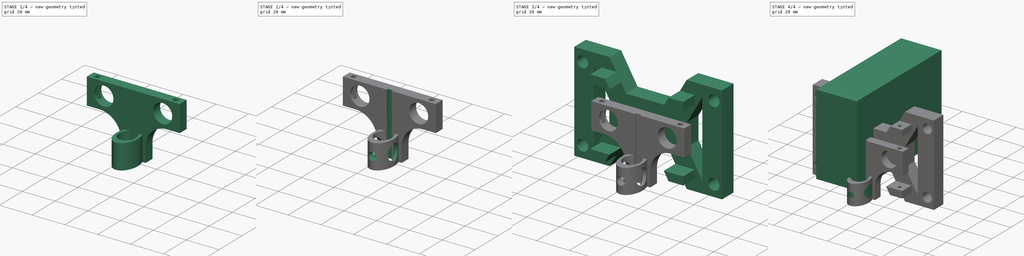
[diagram: build sequence overview — one tinted view per stage of 4, left to right]
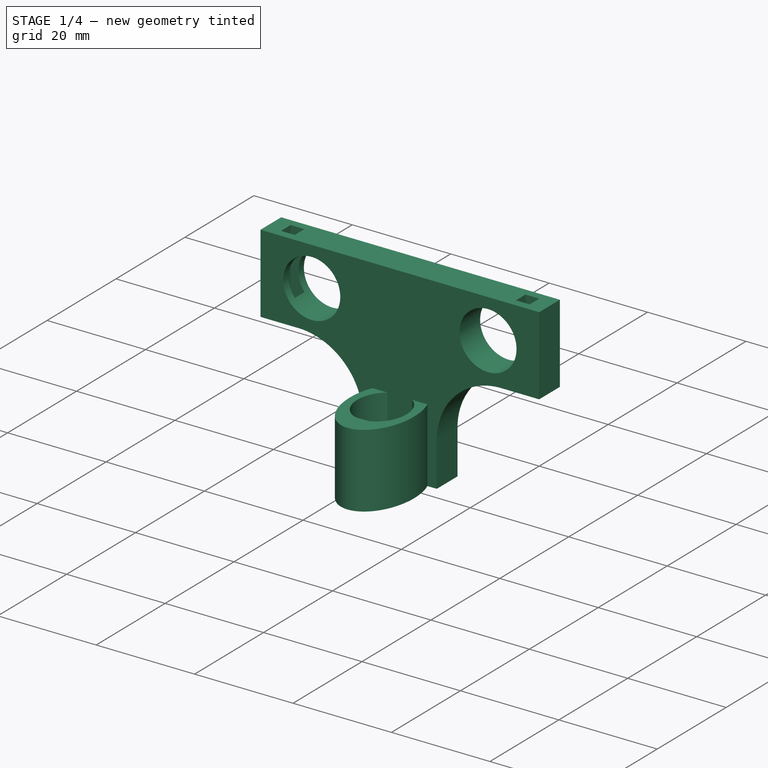
[diagram: stage 1 of 4 — iso view after this stage's code; geometry added in this stage tinted green]
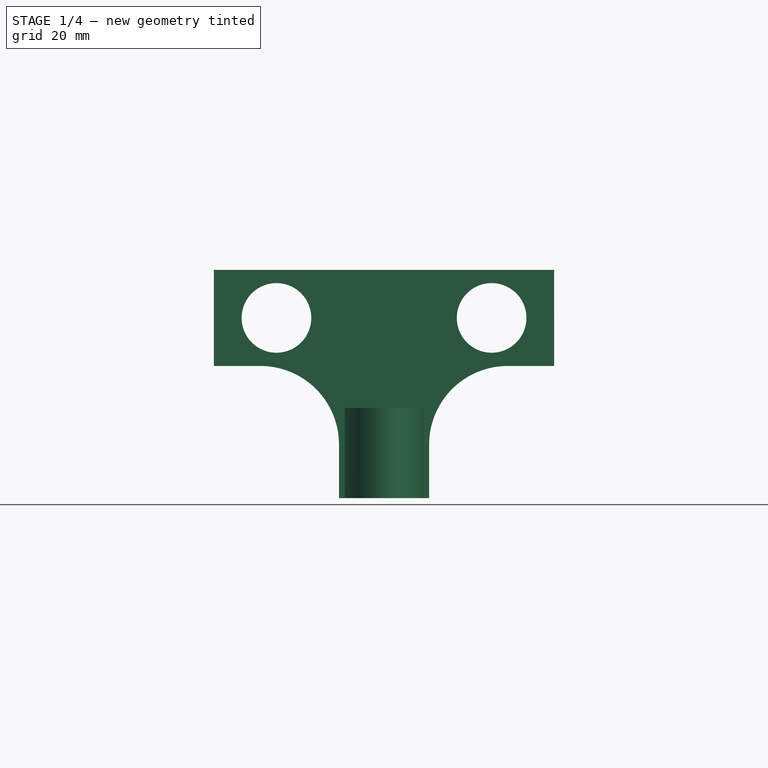
[diagram: stage 1 of 4 — front view after this stage's code; geometry added in this stage tinted green]
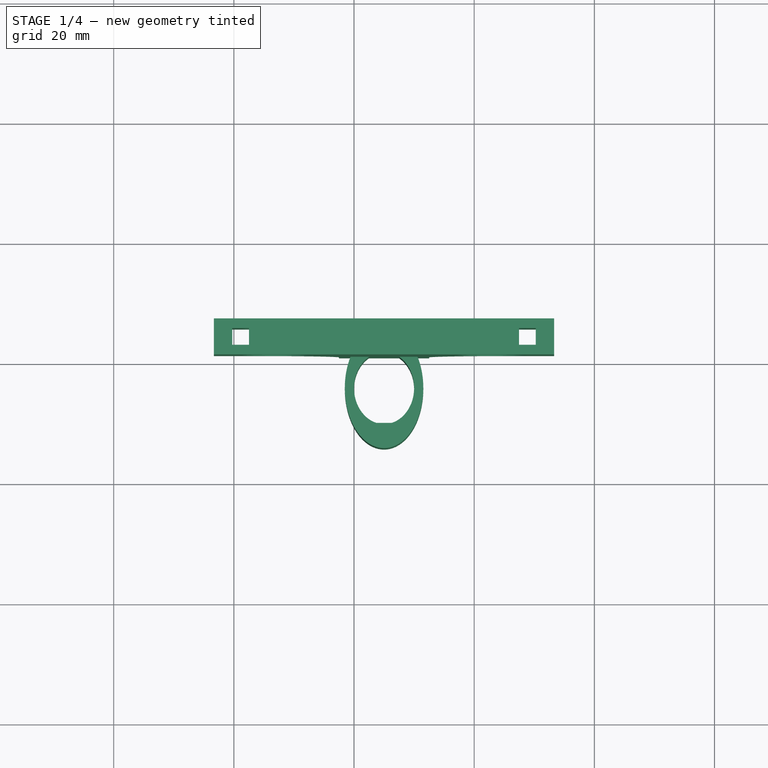
[diagram: stage 1 of 4 — top view after this stage's code; geometry added in this stage tinted green]
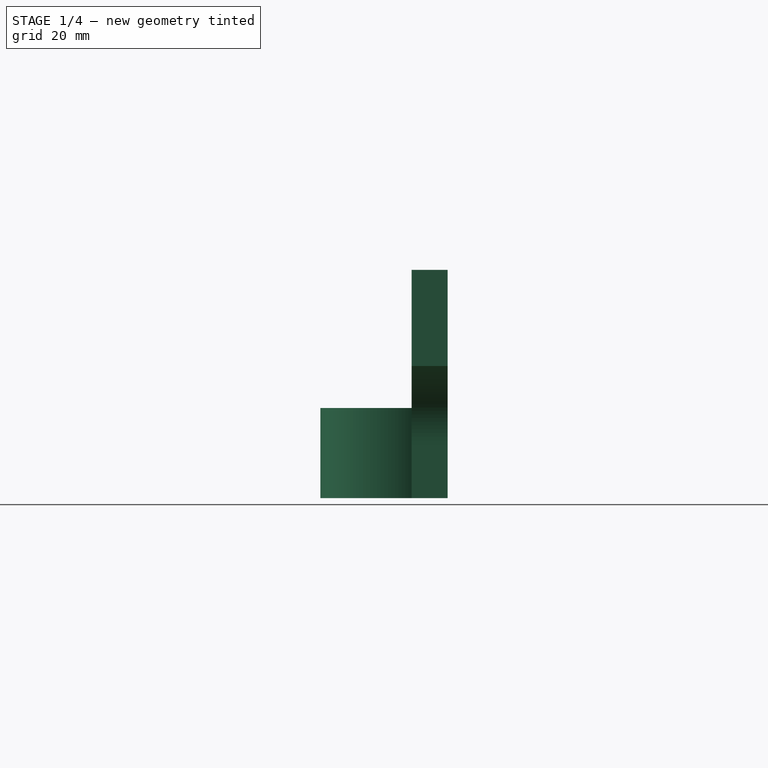
[diagram: stage 1 of 4 — right view after this stage's code; geometry added in this stage tinted green]
FCSTD DOCUMENT  (FreeCAD 0.18R4 (GitTag))
Label: tool-pencil
License: All rights reserved
LicenseURL: http://en.wikipedia.org/wiki/All_rights_reserved
objects: Sketcher::SketchObject×11, PartDesign::Pocket×6, PartDesign::Pad×5, PartDesign::Body×3, PartDesign::Plane×3
note: 39 computed .brp shape members not serialized (recipe doc carries the construction recipe); baked Part::Feature solids carry a one-line shape summary decoded from their .brp

FEATURE [PartDesign::Body] Body001  label="pencil-support"
  Group = -> [Sketch003,Pad001,Sketch004,Pad002,Sketch005,Pocket]
  Origin = -> Origin001
  Tip = -> Pocket
FEATURE [Sketcher::SketchObject] CopySketch004
  Placement = pos=(0,-13,7e-15) rot=(1,0,0;1.5708rad)
  sketch-geometry (43):
    g0: LineSegment [constr] StartX=16.6787 StartY=53 StartZ=0 EndX=25.5807 EndY=53 EndZ=0
    g1: LineSegment [constr] StartX=25.5807 StartY=53 StartZ=0 EndX=28.4674 EndY=48 EndZ=0
    g2: LineSegment [constr] StartX=28.4674 StartY=48 StartZ=0 EndX=16.6787 EndY=48 EndZ=0
    g3: LineSegment [constr] StartX=16.6787 StartY=48 StartZ=0 EndX=16.6787 EndY=53 EndZ=0
    g4: LineSegment [constr] StartX=64.4193 StartY=53 StartZ=0 EndX=73.3018 EndY=53 EndZ=0
    g5: LineSegment [constr] StartX=73.3018 StartY=53 StartZ=0 EndX=73.3018 EndY=48 EndZ=0
    g6: LineSegment [constr] StartX=73.3018 StartY=48 StartZ=0 EndX=61.5326 EndY=48 EndZ=0
    g7: LineSegment [constr] StartX=61.5326 StartY=48 StartZ=0 EndX=64.4193 EndY=53 EndZ=0
    g8: LineSegment [constr] StartX=4.14726 StartY=53 StartZ=0 EndX=81.8093 EndY=53 EndZ=0
    g9: LineSegment [constr] StartX=16.6787 StartY=63.7023 StartZ=0 EndX=16.6787 EndY=-6.93303 EndZ=0
    g10: GeomPoint X=16.6787 Y=44.9021 Z=0
    g11: GeomPoint X=73.3018 Y=44.9021 Z=0
    g12: LineSegment [constr] StartX=73.3018 StartY=64.5507 StartZ=0 EndX=73.3018 EndY=-6.40628 EndZ=0
    g13: LineSegment [constr] StartX=-3.57107 StartY=7 StartZ=0 EndX=95.8724 EndY=7 EndZ=0
    g14: LineSegment [constr] StartX=16.6787 StartY=12 StartZ=0 EndX=16.6787 EndY=7 EndZ=0
    g15: LineSegment [constr] StartX=16.6787 StartY=7 StartZ=0 EndX=25.5807 EndY=7 EndZ=0
    g16: LineSegment [constr] StartX=25.5807 StartY=7 StartZ=0 EndX=28.4674 EndY=12 EndZ=0
    g17: LineSegment [constr] StartX=28.4674 StartY=12 StartZ=0 EndX=16.6787 EndY=12 EndZ=0
    g18: LineSegment [constr] StartX=73.3018 StartY=12 StartZ=0 EndX=61.5326 EndY=12 EndZ=0
    g19: LineSegment [constr] StartX=61.5326 StartY=12 StartZ=0 EndX=64.4193 EndY=7 EndZ=0
    g20: LineSegment [constr] StartX=64.4193 StartY=7 StartZ=0 EndX=73.3018 EndY=7 EndZ=0
    g21: LineSegment [constr] StartX=73.3018 StartY=7 StartZ=0 EndX=73.3018 EndY=12 EndZ=0
    g22: LineSegment [constr] StartX=-5.80281 StartY=38 StartZ=0 EndX=96.7557 EndY=38 EndZ=0
    g23: LineSegment [constr] StartX=-6.86067 StartY=22 StartZ=0 EndX=103.98 EndY=22 EndZ=0
    g24: LineSegment [constr] StartX=37.5 StartY=38 StartZ=0 EndX=37.5 EndY=0 EndZ=0
    g25: LineSegment [constr] StartX=52.5 StartY=38 StartZ=0 EndX=52.5 EndY=0 EndZ=0
    g26: LineSegment [constr] StartX=90 StartY=65.0445 StartZ=0 EndX=90 EndY=0 EndZ=0
    g27: GeomPoint X=45 Y=38 Z=0
    g28: LineSegment [constr] StartX=45 StartY=72.8091 StartZ=0 EndX=45 EndY=-7.09254 EndZ=0
    g29: LineSegment StartX=16.6787 StartY=38 StartZ=0 EndX=73.3018 EndY=38 EndZ=0
    g30: LineSegment StartX=73.3018 StartY=38 StartZ=0 EndX=73.3018 EndY=22 EndZ=0
    g31: LineSegment StartX=73.3018 StartY=22 StartZ=0 EndX=65.5675 EndY=22 EndZ=0
    g32: LineSegment StartX=52.5 StartY=8.93253 StartZ=0 EndX=52.5 EndY=0 EndZ=0
    g33: LineSegment StartX=52.5 StartY=0 StartZ=0 EndX=37.5 EndY=0 EndZ=0
    g34: LineSegment StartX=37.5 StartY=0 StartZ=0 EndX=37.5 EndY=8.93253 EndZ=0
    g35: LineSegment StartX=24.4325 StartY=22 StartZ=0 EndX=16.6787 EndY=22 EndZ=0
    g36: LineSegment StartX=16.6787 StartY=22 StartZ=0 EndX=16.6787 EndY=38 EndZ=0
    g37: ArcOfCircle CenterX=24.4325 CenterY=8.93253 CenterZ=0 NormalX=0 NormalY=0 NormalZ=1 AngleXU=0 Radius=13.0675 StartAngle=0 EndAngle=1.5708
    g38: ArcOfCircle CenterX=65.5675 CenterY=8.93253 CenterZ=0 NormalX=0 NormalY=0 NormalZ=1 AngleXU=0 Radius=13.0675 StartAngle=1.5708 EndAngle=3.14159
    g39: Circle CenterX=27.0893 CenterY=30 CenterZ=0 NormalX=0 NormalY=0 NormalZ=1 AngleXU=0 Radius=5.79446
    g40: Circle CenterX=62.9009 CenterY=30 CenterZ=0 NormalX=0 NormalY=0 NormalZ=1 AngleXU=0 Radius=5.79446
    g41: GeomPoint X=37.5 Y=22 Z=0
    g42: GeomPoint X=52.5 Y=22 Z=0
  constraints (83):
    c: Coincident(g0,g1)
    c: Coincident(g1,g2)
    c: Coincident(g2,g3)
    c: Coincident(g4,g5)
    c: Coincident(g5,g6)
    c: Coincident(g6,g7)
    c: Coincident(g3,g0)
    c: Coincident(g7,g4)
    c: Horizontal(g0)
    c: Horizontal(g2)
    c: Horizontal(g6)
    c: Vertical(g9)
    c: PointOnObject(g10,g9)
    c: Vertical(g12)
    c: PointOnObject(g11,g12)
    c: Tangent(g0,g8)
    c: Tangent(g3,g9)
    c: Tangent(g4,g8)
    c: Tangent(g5,g12)
    c: DistanceY(g2,g0) = 5
    c: DistanceY(g5,g4) = 5
    c: Horizontal(g13)
    c: DistanceY(g-1,g13) = 7
    c: Coincident(g14,g15)
    c: Coincident(g15,g16)
    c: Coincident(g16,g17)
    c: Coincident(g18,g19)
    c: Coincident(g19,g20)
    c: Coincident(g20,g21)
    c: Coincident(g18,g21)
    c: Coincident(g17,g14)
    c: Tangent(g14,g9)
    c: Tangent(g15,g13)
    c: Horizontal(g17)
    c: Horizontal(g18)
    c: Tangent(g21,g12)
    c: Tangent(g20,g13)
    c: DistanceY(g20,g18) = 5
    c: DistanceY(g14,g14) = 5
    c: DistanceY(g22,g2) = 10
    c: Horizontal(g22)
    c: DistanceY(g14,g23) = 10
    c: Horizontal(g23)
    c: Vertical(g24)
    c: Vertical(g25)
    c: PointOnObject(g24,g22)
    c: PointOnObject(g25,g22)
    c: PointOnObject(g24,g-1)
    c: PointOnObject(g25,g-1)
    c: DistanceX(g24,g25) = 15
    c: DistanceY(g-1,g8) = 53
    c: Vertical(g26)
    c: DistanceX(g-1,g26) = 90
    c: Symmetric(g24,g25,g27)
    c: PointOnObject(g26,g-1)
    c: Symmetric(g-1,g26,g28)
    c: PointOnObject(g27,g28)
    c: Coincident(g29,g30)
    c: Coincident(g30,g31)
    c: Coincident(g32,g33)
    c: Coincident(g33,g34)
    c: Coincident(g35,g36)
    c: Coincident(g36,g29)
    c: Tangent(g36,g9)
    c: Tangent(g30,g12)
    c: Tangent(g22,g29)
    c: Tangent(g31,g23)
    c: Tangent(g35,g23)
    c: Tangent(g32,g25)
    c: Tangent(g34,g24)
    c: Tangent(g33,g-1)
    c: Tangent(g35,g37) = -1.5708
    c: Tangent(g34,g37) = -1.5708
    c: Tangent(g31,g38) = -1.5708
    c: Tangent(g32,g38) = -1.5708
    c: Equal(g38,g37)
    c: Equal(g39,g40)
    c: PointOnObject(g41,g24)
    c: PointOnObject(g41,g23)
    c: PointOnObject(g42,g23)
    c: PointOnObject(g42,g25)
    c: Symmetric(g29,g41,g39)
    c: Symmetric(g29,g42,g40)
FEATURE [PartDesign::Plane] DatumPlane
  Length = 95.9485
  MapMode = 2
  Placement = pos=(0,-13,7e-15) rot=(1,0,0;1.5708rad)
  ResizeMode = 0
  Support = -> [CopySketch004]
  Width = 60.6467
FEATURE [PartDesign::Pad] Pad003
  Length = 6
  Length2 = 100
  Placement = pos=(0,-13,7e-15) rot=(1,0,0;1.5708rad)
  Profile = -> CopySketch004
  Type = 0
FEATURE [Sketcher::SketchObject] Sketch006
  ExternalGeometry = -> [DatumPlane,Pad003]
  MapMode = 5
  Placement = pos=(0,-13,38) rot=(0,0,1;3.14159rad)
  Support = -> [Pad003]
  sketch-geometry (11):
    g0: LineSegment StartX=-19.7287 StartY=1.6 StartZ=0 EndX=-22.5287 EndY=1.6 EndZ=0
    g1: LineSegment StartX=-22.5287 StartY=1.6 StartZ=0 EndX=-22.5287 EndY=4.4 EndZ=0
    g2: LineSegment StartX=-22.5287 StartY=4.4 StartZ=0 EndX=-19.7287 EndY=4.4 EndZ=0
    g3: LineSegment StartX=-19.7287 StartY=4.4 StartZ=0 EndX=-19.7287 EndY=1.6 EndZ=0
    g4: LineSegment StartX=-67.4518 StartY=1.6 StartZ=0 EndX=-70.2518 EndY=1.6 EndZ=0
    g5: LineSegment StartX=-70.2518 StartY=1.6 StartZ=0 EndX=-70.2518 EndY=4.4 EndZ=0
    g6: LineSegment StartX=-70.2518 StartY=4.4 StartZ=0 EndX=-67.4518 EndY=4.4 EndZ=0
    g7: LineSegment StartX=-67.4518 StartY=4.4 StartZ=0 EndX=-67.4518 EndY=1.6 EndZ=0
    g8: GeomPoint X=-21.1287 Y=3 Z=0
    g9: GeomPoint X=-68.8518 Y=3 Z=0
    g10: LineSegment [constr] StartX=-16.6787 StartY=3 StartZ=0 EndX=-73.3018 EndY=3 EndZ=0
  constraints (29):
    c: Coincident(g0,g1)
    c: Coincident(g1,g2)
    c: Coincident(g2,g3)
    c: Coincident(g3,g0)
    c: Horizontal(g0)
    c: Horizontal(g2)
    c: Vertical(g1)
    c: Vertical(g3)
    c: Coincident(g4,g5)
    c: Coincident(g5,g6)
    c: Coincident(g6,g7)
    c: Coincident(g7,g4)
    c: Horizontal(g4)
    c: Horizontal(g6)
    c: Vertical(g5)
    c: Vertical(g7)
    c: Equal(g0,g1)
    c: Equal(g1,g4)
    c: Equal(g4,g5)
    c: DistanceX(g4,g4) = 2.8
    c: Symmetric(g0,g1,g8)
    c: Symmetric(g4,g5,g9)
    c: Horizontal(g10)
    c: Symmetric(g-5,g-5,g10)
    c: PointOnObject(g10,g-6)
    c: PointOnObject(g8,g10)
    c: PointOnObject(g9,g10)
    c: DistanceX(g-6,g9) = 4.45
    c: DistanceX(g8,g10) = 4.45
FEATURE [PartDesign::Pocket] Pocket002
  BaseFeature = -> Pad003
  Length = 5
  Length2 = 100
  Placement = pos=(0,-13,7e-15) rot=(1,0,0;1.5708rad)
  Profile = -> Sketch006
  Type = 1
FEATURE [Sketcher::SketchObject] Sketch007
  ExternalGeometry = -> [Pocket002]
  MapMode = 5
  Placement = pos=(0,-13,7e-15) rot=(1,0,0;3.14159rad)
  Support = -> [Pocket002]
  sketch-geometry (21):
    g0: LineSegment [constr] StartX=45 StartY=28.2877 StartZ=0 EndX=45 EndY=0 EndZ=0
    g1: LineSegment [constr] StartX=45 StartY=5.69282 StartZ=0 EndX=45 EndY=14.1915 EndZ=0
    g2: ArcOfEllipse CenterX=45 CenterY=11.1915 CenterZ=0 NormalX=0 NormalY=0 NormalZ=1 MajorRadius=6 MinorRadius=5 AngleXU=-1.5708 StartAngle=3.39493 EndAngle=9.17144
    g3: LineSegment [constr] StartX=45 StartY=5.19151 StartZ=0 EndX=45 EndY=17.1915 EndZ=0
    g4: LineSegment [constr] StartX=50 StartY=11.1915 StartZ=0 EndX=40 EndY=11.1915 EndZ=0
    g5: GeomPoint X=45 Y=7.87489 Z=0
    g6: GeomPoint X=45 Y=14.5081 Z=0
    g7: LineSegment [constr] StartX=36.9802 StartY=17 StartZ=0 EndX=53.301 EndY=17 EndZ=0
    g8: GeomPoint X=45 Y=6 Z=0
    g9: GeomPoint X=43.3236 Y=17 Z=0
    g10: GeomPoint X=46.6764 Y=17 Z=0
    g11: GeomPoint X=46.6764 Y=6 Z=0
    g12: GeomPoint X=43.3236 Y=6 Z=0
    g13: GeomPoint X=42.4933 Y=6 Z=0
    g14: GeomPoint X=42.4933 Y=6 Z=0
    g15: LineSegment [constr] StartX=37.5 StartY=6 StartZ=0 EndX=52.5 EndY=6 EndZ=0
    g16: Ellipse CenterX=45 CenterY=11.1915 CenterZ=0 NormalX=0 NormalY=0 NormalZ=1 MajorRadius=10 MinorRadius=6.53458 AngleXU=-1.5708
    g17: LineSegment [constr] StartX=45 StartY=1.19151 StartZ=0 EndX=45 EndY=21.1915 EndZ=0
    g18: GeomPoint X=45 Y=3.62189 Z=0
    g19: GeomPoint X=45 Y=18.7611 Z=0
    g20: LineSegment StartX=43.7468 StartY=17 StartZ=0 EndX=46.2532 EndY=17 EndZ=0
  constraints (33):
    c: Vertical(g0)
    c: Symmetric(g-4,g-5,g0)
    c: Vertical(g1)
    c: InternalAlignment(g3-g6 -> g2) x4
    c: Vertical(g3)
    c: DistanceY(g1,g3) = 3
    c: Horizontal(g7)
    c: PointOnObject(g8,g-3)
    c: PointOnObject(g8,g0)
    c: DistanceY(g8,g7) = 11
    c: PointOnObject(g9,g7)
    c: PointOnObject(g10,g7)
    c: PointOnObject(g11,g-3)
    c: PointOnObject(g12,g-3)
    c: PointOnObject(g14,g-3)
    c: PointOnObject(g14,g2)
    c: PointOnObject(g13,g-3)
    c: PointOnObject(g13,g2)
    c: Coincident(g15,g-4)
    c: Coincident(g15,g-5)
    c: InternalAlignment(g17,g16)
    c: InternalAlignment(g18,g16)
    c: InternalAlignment(g19,g16)
    c: Coincident(g16,g2)
    c: Vertical(g17)
    c: DistanceX(g2,g4) = 5
    c: DistanceY(g2,g3) = 6
    c: PointOnObject(g2,g0)
    c: DistanceY(g3,g17) = 4
    c: PointOnObject(g2,g7)
    c: PointOnObject(g2,g7)
    c: Coincident(g20,g2)
    c: Coincident(g20,g2)
FEATURE [PartDesign::Pad] Pad004
  BaseFeature = -> Pocket002
  Length = 15
  Length2 = 100
  Placement = pos=(0,-13,7e-15) rot=(1,0,0;1.5708rad)
  Profile = -> Sketch007
  Reversed = true
  Type = 0
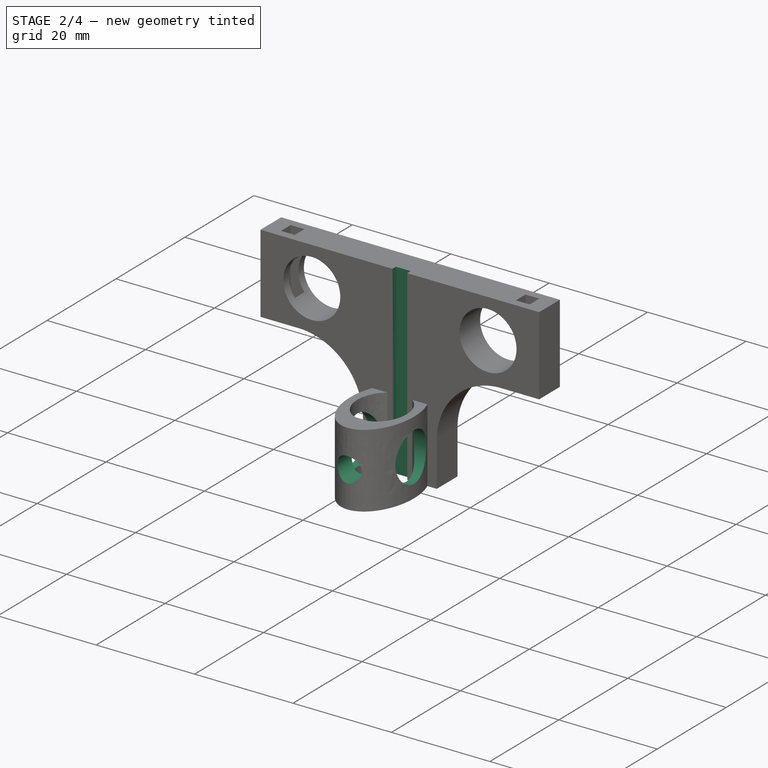
[diagram: stage 2 of 4 — iso view after this stage's code; geometry added in this stage tinted green]
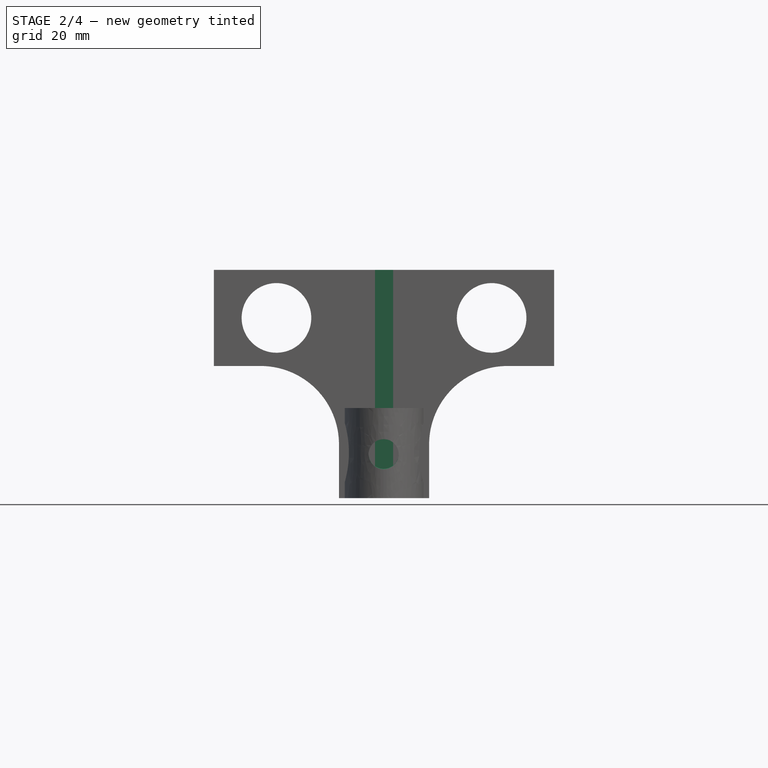
[diagram: stage 2 of 4 — front view after this stage's code; geometry added in this stage tinted green]
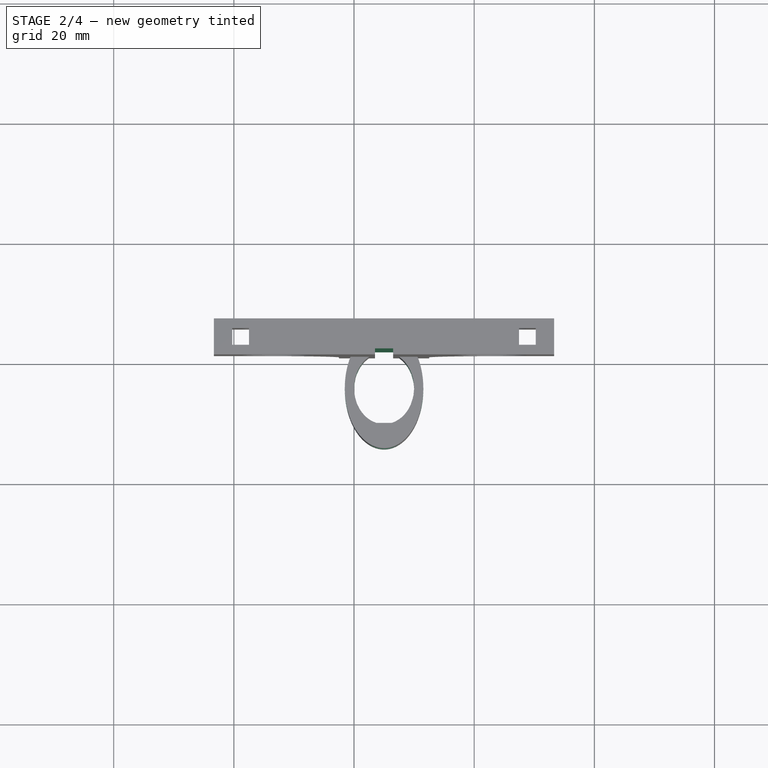
[diagram: stage 2 of 4 — top view after this stage's code; geometry added in this stage tinted green]
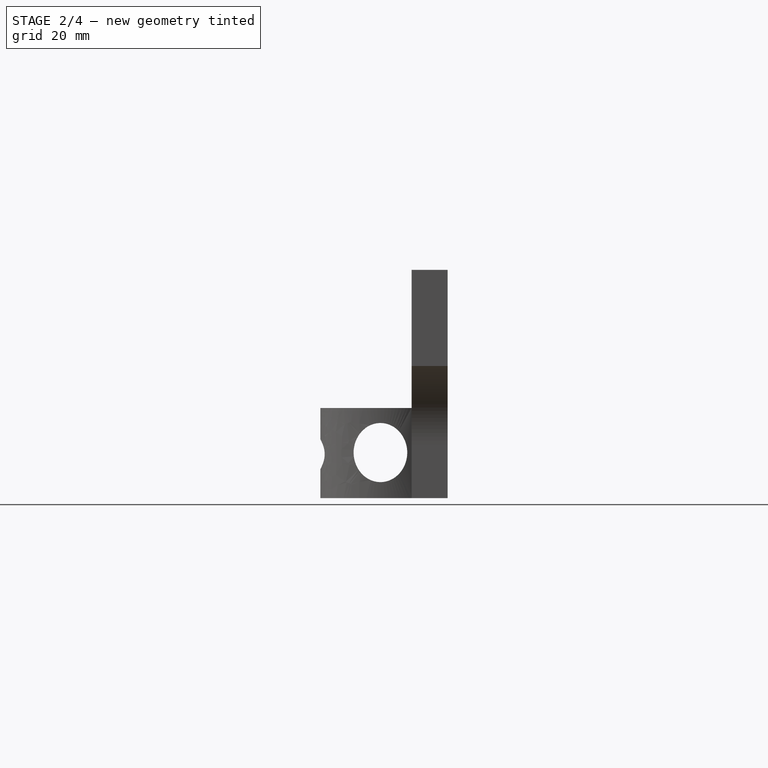
[diagram: stage 2 of 4 — right view after this stage's code; geometry added in this stage tinted green]
FEATURE [Sketcher::SketchObject] Sketch008
  ExternalGeometry = -> [Pad004]
  MapMode = 5
  Placement = pos=(0,-19,7e-15) rot=(1,0,0;1.5708rad)
  Support = -> [Pad004]
  sketch-geometry (7):
    g0: LineSegment StartX=43.5 StartY=38 StartZ=0 EndX=46.5 EndY=38 EndZ=0
    g1: LineSegment StartX=46.5 StartY=38 StartZ=0 EndX=46.5 EndY=0 EndZ=0
    g2: LineSegment StartX=46.5 StartY=0 StartZ=0 EndX=43.5 EndY=0 EndZ=0
    g3: LineSegment StartX=43.5 StartY=0 StartZ=0 EndX=43.5 EndY=38 EndZ=0
    g4: GeomPoint X=45 Y=19 Z=0
    g5: GeomPoint X=48.7691 Y=17.9469 Z=0
    g6: LineSegment [constr] StartX=45 StartY=38 StartZ=0 EndX=45 EndY=0 EndZ=0
  constraints (16):
    c: Coincident(g0,g1)
    c: Coincident(g1,g2)
    c: Coincident(g2,g3)
    c: Coincident(g3,g0)
    c: Horizontal(g0)
    c: Horizontal(g2)
    c: Vertical(g1)
    c: Vertical(g3)
    c: DistanceX(g0,g0) = 3
    c: PointOnObject(g1,g-1)
    c: Vertical(g6)
    c: Symmetric(g-4,g-5,g6)
    c: PointOnObject(g6,g-6)
    c: Symmetric(g0,g1,g4)
    c: PointOnObject(g4,g6)
    c: PointOnObject(g0,g-6)
FEATURE [PartDesign::Pocket] Pocket003
  BaseFeature = -> Pad004
  Length = 1
  Length2 = 100
  Placement = pos=(0,-13,7e-15) rot=(1,0,0;1.5708rad)
  Profile = -> Sketch008
  Type = 0
FEATURE [PartDesign::Body] Body
  Group = -> [Sketch,Pad,Sketch002,Pocket001]
  Origin = -> Origin
  Tip = -> Pocket001
FEATURE [PartDesign::Plane] DatumPlane001
  Length = 53.4022
  MapMode = 3
  Placement = pos=(45,-24.1915,-1.7e-15) rot=(-0.57735,-0.57735,0.57735;2.0944rad)
  ResizeMode = 0
  Support = -> [Pocket003]
  Width = 57.2112
FEATURE [Sketcher::SketchObject] Sketch010
  MapMode = 5
  Placement = pos=(45,-24.1915,-1.7e-15) rot=(-0.57735,-0.57735,0.57735;2.0944rad)
  Support = -> [DatumPlane001]
  sketch-geometry (5):
    g0: Ellipse CenterX=0 CenterY=-7.58757 CenterZ=0 NormalX=0 NormalY=0 NormalZ=1 MajorRadius=4.91655 MinorRadius=4.46419 AngleXU=-1.5708
    g1: LineSegment [constr] StartX=0 StartY=-12.5041 StartZ=0 EndX=0 EndY=-2.67103 EndZ=0
    g2: LineSegment [constr] StartX=4.46419 StartY=-7.58757 StartZ=0 EndX=-4.46419 EndY=-7.58757 EndZ=0
    g3: GeomPoint X=0 Y=-9.64753 Z=0
    g4: GeomPoint X=0 Y=-5.52762 Z=0
  constraints (3):
    c: InternalAlignment(g1-g4 -> g0) x4
    c: Vertical(g1)
    c: PointOnObject(g0,g-2)
FEATURE [PartDesign::Pocket] Pocket004
  BaseFeature = -> Pocket003
  Length = 9
  Length2 = 100
  Placement = pos=(0,-13,7e-15) rot=(1,0,0;1.5708rad)
  Profile = -> Sketch010
  Type = 4
FEATURE [PartDesign::Plane] DatumPlane002
  AttachmentOffset = pos=(0,0,0) rot=(0,-1,0;0.715585rad)
  Length = 61.3504
  MapMode = 45
  Placement = pos=(45,-28.8304,7.47046) rot=(-0.574601,-0.574605,-0.582806;2.08624rad)
  ResizeMode = 0
  Support = -> [Pocket004]
  Width = 96.0307
FEATURE [Sketcher::SketchObject] Sketch011
  MapMode = 5
  Placement = pos=(45,-28.8304,7.47046) rot=(-0.574601,-0.574605,-0.582806;2.08624rad)
  Support = -> [DatumPlane002]
  sketch-geometry (1):
    g0: Circle CenterX=-0.075884 CenterY=-0.06639 CenterZ=0 NormalX=0 NormalY=0 NormalZ=1 AngleXU=0 Radius=2.5
  constraints (1):
    c: Diameter(g0) = 5
FEATURE [PartDesign::Pocket] Pocket005
  BaseFeature = -> Pocket004
  Length = 10
  Length2 = 100
  Placement = pos=(0,-13,7e-15) rot=(1,0,0;1.5708rad)
  Profile = -> Sketch011
  Type = 0
FEATURE [PartDesign::Body] Body002  label="pencil-pincer"
  Group = -> [DatumPlane,CopySketch004,Pad003,Sketch006,Pocket002,Sketch007,Pad004,Sketch008,Pocket003,DatumPlane001,Sketch010,Pocket004,DatumPlane002,Sketch011,Pocket005]
  Origin = -> Origin002
  Tip = -> Pocket005
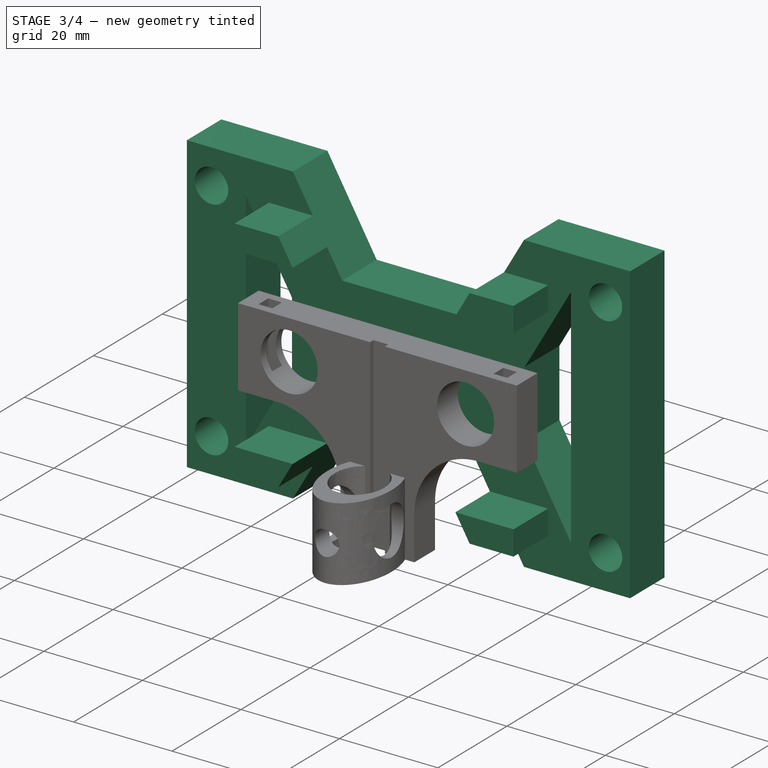
[diagram: stage 3 of 4 — iso view after this stage's code; geometry added in this stage tinted green]
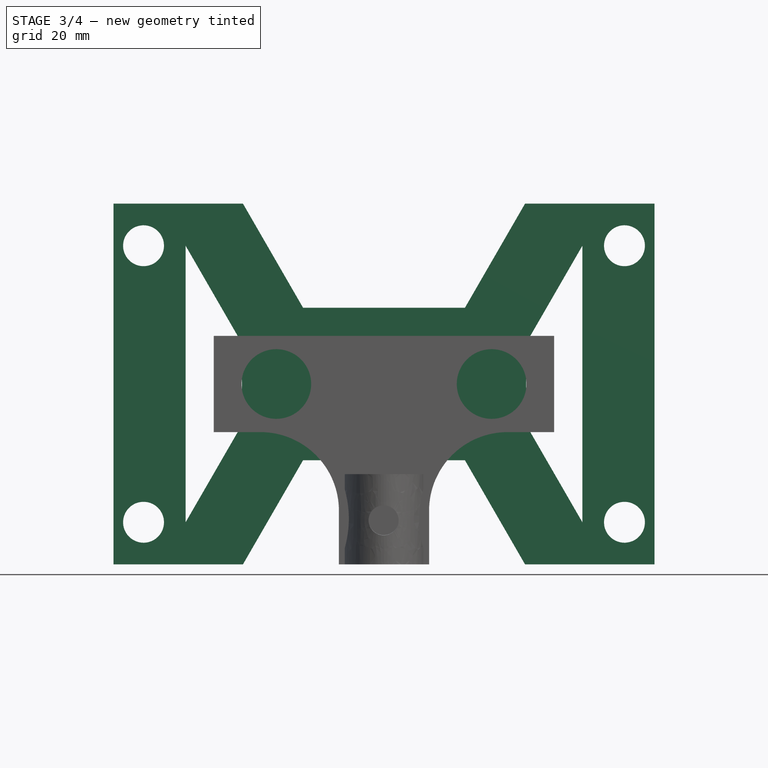
[diagram: stage 3 of 4 — front view after this stage's code; geometry added in this stage tinted green]
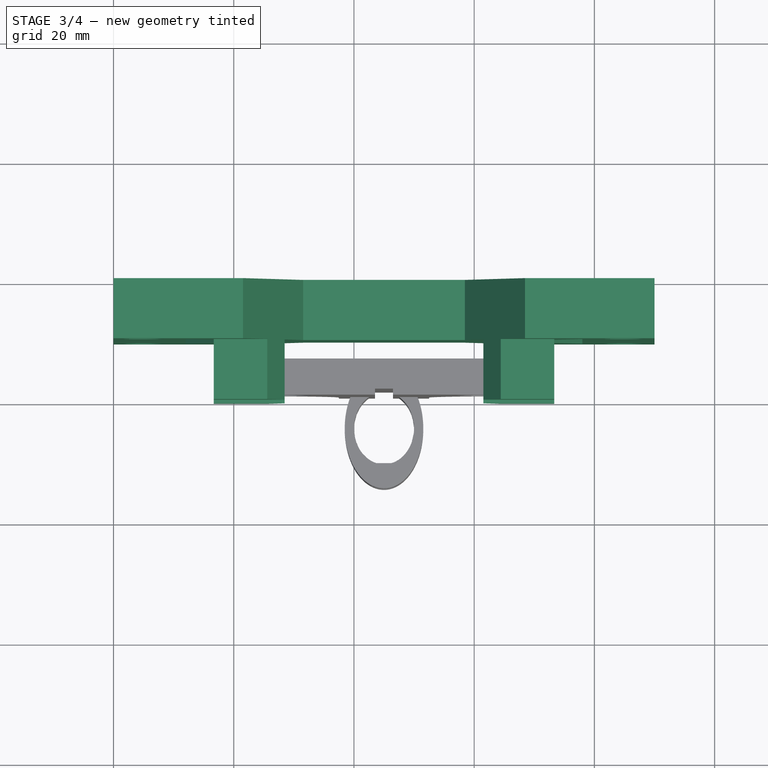
[diagram: stage 3 of 4 — top view after this stage's code; geometry added in this stage tinted green]
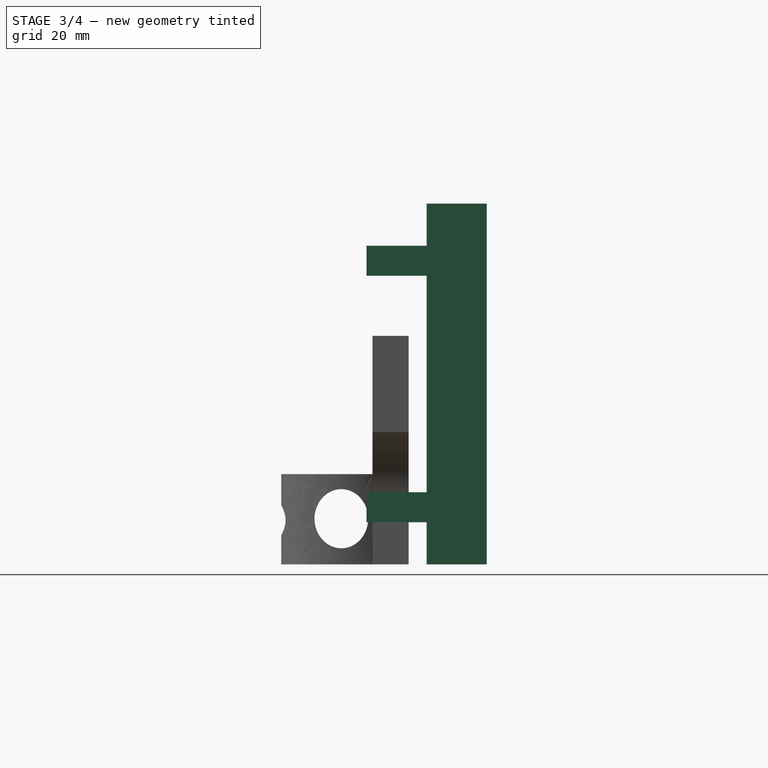
[diagram: stage 3 of 4 — right view after this stage's code; geometry added in this stage tinted green]
FEATURE [Sketcher::SketchObject] Sketch002
  MapMode = 5
  Placement = pos=(0,0,0) rot=(1,0,0;1.5708rad)
  sketch-geometry (8):
    g0: Circle CenterX=5 CenterY=53 CenterZ=0 NormalX=0 NormalY=0 NormalZ=1 AngleXU=0 Radius=3.4
    g1: LineSegment [constr] StartX=10.2352 StartY=60 StartZ=0 EndX=10.2352 EndY=0 EndZ=0
    g2: LineSegment [constr] StartX=0 StartY=60 StartZ=0 EndX=89.9005 EndY=60 EndZ=0
    g3: LineSegment [constr] StartX=89.9005 StartY=0 StartZ=0 EndX=0 EndY=0 EndZ=0
    g4: LineSegment [constr] StartX=79.9333 StartY=60 StartZ=0 EndX=79.9333 EndY=0 EndZ=0
    g5: Circle CenterX=5 CenterY=7 CenterZ=0 NormalX=0 NormalY=0 NormalZ=1 AngleXU=0 Radius=3.4
    g6: Circle CenterX=85 CenterY=53 CenterZ=0 NormalX=0 NormalY=0 NormalZ=1 AngleXU=0 Radius=3.4
    g7: Circle CenterX=85 CenterY=7 CenterZ=0 NormalX=0 NormalY=0 NormalZ=1 AngleXU=0 Radius=3.4
  constraints (17):
    c: Diameter(g0) = 6.8
    c: Vertical(g1)
    c: Vertical(g4)
    c: Horizontal(g2)
    c: Horizontal(g3)
    c: PointOnObject(g1,g3)
    c: Coincident(g-1,g3)
    c: PointOnObject(g1,g2)
    c: PointOnObject(g4,g2)
    c: PointOnObject(g4,g3)
    c: Equal(g7,g6)
    c: Equal(g6,g0)
    c: Equal(g0,g5)
    c: Distance(g5,g3) = 7
    c: Distance(g7,g3) = 7
    c: Distance(g6,g2) = 7
    c: Distance(g0,g2) = 7
FEATURE [Sketcher::SketchObject] Sketch003
  MapMode = 5
  Placement = pos=(0,0,0) rot=(1,0,0;1.5708rad)
  Support = -> [XZ_Plane001]
  sketch-geometry (24):
    g0: LineSegment StartX=0 StartY=60 StartZ=0 EndX=21.5392 EndY=60 EndZ=0
    g1: LineSegment StartX=21.5392 StartY=60 StartZ=0 EndX=31.5407 EndY=42.6768 EndZ=0
    g2: LineSegment StartX=31.5407 StartY=42.6768 StartZ=0 EndX=58.4593 EndY=42.6768 EndZ=0
    g3: LineSegment StartX=58.4593 StartY=42.6768 StartZ=0 EndX=68.4608 EndY=60 EndZ=0
    g4: LineSegment StartX=68.4608 StartY=60 StartZ=0 EndX=90 EndY=60 EndZ=0
    g5: LineSegment StartX=90 StartY=60 StartZ=0 EndX=90 EndY=0 EndZ=0
    g6: LineSegment StartX=90 StartY=0 StartZ=0 EndX=68.4608 EndY=0 EndZ=0
    g7: LineSegment StartX=68.4608 StartY=0 StartZ=0 EndX=58.4593 EndY=17.3232 EndZ=0
    g8: LineSegment StartX=58.4593 StartY=17.3232 StartZ=0 EndX=31.5407 EndY=17.3232 EndZ=0
    g9: LineSegment StartX=31.5407 StartY=17.3232 StartZ=0 EndX=21.5392 EndY=0 EndZ=0
    g10: LineSegment StartX=21.5392 StartY=0 StartZ=0 EndX=0 EndY=0 EndZ=0
    g11: LineSegment StartX=0 StartY=0 StartZ=0 EndX=0 EndY=60 EndZ=0
    g12: LineSegment StartX=78 StartY=53 StartZ=0 EndX=68.6493 EndY=36.8041 EndZ=0
    g13: LineSegment StartX=68.6493 StartY=36.8041 StartZ=0 EndX=68.6493 EndY=23.1959 EndZ=0
    g14: LineSegment StartX=68.6493 StartY=23.1959 StartZ=0 EndX=78 EndY=7 EndZ=0
    g15: LineSegment StartX=78 StartY=7 StartZ=0 EndX=78 EndY=53 EndZ=0
    g16: LineSegment StartX=12 StartY=53 StartZ=0 EndX=12 EndY=7 EndZ=0
    g17: LineSegment StartX=12 StartY=7 StartZ=0 EndX=21.3507 EndY=23.1959 EndZ=0
    g18: LineSegment StartX=21.3507 StartY=23.1959 StartZ=0 EndX=21.3507 EndY=36.8041 EndZ=0
    g19: LineSegment StartX=21.3507 StartY=36.8041 StartZ=0 EndX=12 EndY=53 EndZ=0
    g20: Circle CenterX=5 CenterY=53 CenterZ=0 NormalX=0 NormalY=0 NormalZ=1 AngleXU=0 Radius=3.4
    g21: Circle CenterX=5 CenterY=7 CenterZ=0 NormalX=0 NormalY=0 NormalZ=1 AngleXU=0 Radius=3.4
    g22: Circle CenterX=85 CenterY=7 CenterZ=0 NormalX=0 NormalY=0 NormalZ=1 AngleXU=0 Radius=3.4
    g23: Circle CenterX=85 CenterY=53 CenterZ=0 NormalX=0 NormalY=0 NormalZ=1 AngleXU=0 Radius=3.4
  constraints (68):
    c: Coincident(g0,g1)
    c: Coincident(g1,g2)
    c: Coincident(g2,g3)
    c: Coincident(g3,g4)
    c: Coincident(g4,g5)
    c: Coincident(g5,g6)
    c: Coincident(g6,g7)
    c: Coincident(g7,g8)
    c: Coincident(g8,g9)
    c: Coincident(g9,g10)
    c: Coincident(g10,g11)
    c: Coincident(g12,g13)
    c: Coincident(g13,g14)
    c: Coincident(g14,g15)
    c: Coincident(g16,g17)
    c: Coincident(g17,g18)
    c: Coincident(g18,g19)
    c: Coincident(g0,g11)
    c: Coincident(g16,g19)
    c: Coincident(g12,g15)
    c: Vertical(g11)
    c: Vertical(g16)
    c: Vertical(g18)
    c: Vertical(g13)
    c: Vertical(g15)
    c: Vertical(g5)
    c: Horizontal(g0)
    c: Horizontal(g4)
    c: Horizontal(g6)
    c: Horizontal(g10)
    c: Horizontal(g2)
    c: Horizontal(g8)
    c: Coincident(g10,g-1)
    c: Equal(g11,g5)
    c: DistanceY(g11,g11) = 60
    c: Equal(g20,g21)
    c: Equal(g20,g23)
    c: Equal(g20,g22)
    c: Diameter(g20) = 6.8
    c: DistanceX(g0,g20) = 5
    c: DistanceX(g10,g21) = 5
    c: DistanceX(g22,g5) = 5
    c: DistanceX(g23,g4) = 5
    c: DistanceY(g20,g0) = 7
    c: DistanceY(g10,g21) = 7
    c: DistanceY(g5,g22) = 7
    c: DistanceY(g23,g4) = 7
    c: PointOnObject(g5,g-1)
    c: DistanceX(g10,g5) = 90
    c: Angle(g9,g8) = 2.0944
    c: Angle(g8,g7) = 2.0944
    c: Angle(g2,g1) = 2.0944
    c: Angle(g3,g2) = 2.0944
    c: Equal(g2,g8)
    c: Equal(g0,g4)
    c: Equal(g4,g6)
    c: Equal(g6,g10)
    c: Equal(g16,g15)
    c: Equal(g18,g13)
    c: DistanceX(g0,g16) = 12
    c: DistanceX(g12,g4) = 12
    c: Parallel(g1,g19)
    c: Parallel(g17,g9)
    c: Parallel(g3,g12)
    c: DistanceY(g16,g0) = 7
    c: DistanceY(g12,g4) = 7
    c: DistanceY(g10,g16) = 7
    c: Parallel(g14,g7)
FEATURE [PartDesign::Pad] Pad001
  Length = 10
  Length2 = 100
  Placement = pos=(0,0,0) rot=(1,0,0;1.5708rad)
  Profile = -> Sketch003
  Type = 0
FEATURE [Sketcher::SketchObject] Sketch004
  ExternalGeometry = -> [Pad001]
  MapMode = 5
  Placement = pos=(0,-10,4.4e-15) rot=(1,0,0;1.5708rad)
  Support = -> [Pad001]
  sketch-geometry (22):
    g0: LineSegment StartX=16.6753 StartY=53 StartZ=0 EndX=25.5807 EndY=53 EndZ=0
    g1: LineSegment StartX=25.5807 StartY=53 StartZ=0 EndX=28.4674 EndY=48 EndZ=0
    g2: LineSegment StartX=28.4674 StartY=48 StartZ=0 EndX=16.6753 EndY=48 EndZ=0
    g3: LineSegment StartX=16.6753 StartY=48 StartZ=0 EndX=16.6753 EndY=53 EndZ=0
    g4: LineSegment StartX=64.4193 StartY=53 StartZ=0 EndX=73.3247 EndY=53 EndZ=0
    g5: LineSegment StartX=73.3247 StartY=53 StartZ=0 EndX=73.3247 EndY=48 EndZ=0
    g6: LineSegment StartX=73.3247 StartY=48 StartZ=0 EndX=61.5326 EndY=48 EndZ=0
    g7: LineSegment StartX=61.5326 StartY=48 StartZ=0 EndX=64.4193 EndY=53 EndZ=0
    g8: LineSegment [constr] StartX=3.96977 StartY=53 StartZ=0 EndX=81.8093 EndY=53 EndZ=0
    g9: LineSegment [constr] StartX=16.6753 StartY=63.7025 StartZ=0 EndX=16.6753 EndY=-6.93314 EndZ=0
    g10: GeomPoint X=16.6753 Y=44.9021 Z=0
    g11: GeomPoint X=73.3247 Y=44.9021 Z=0
    g12: LineSegment [constr] StartX=73.3247 StartY=64.2869 StartZ=0 EndX=73.3247 EndY=-6.67093 EndZ=0
    g13: LineSegment [constr] StartX=-3.57107 StartY=7 StartZ=0 EndX=95.8724 EndY=7 EndZ=0
    g14: LineSegment StartX=16.6753 StartY=12 StartZ=0 EndX=16.6753 EndY=7 EndZ=0
    g15: LineSegment StartX=16.6753 StartY=7 StartZ=0 EndX=25.5807 EndY=7 EndZ=0
    g16: LineSegment StartX=25.5807 StartY=7 StartZ=0 EndX=28.4674 EndY=12 EndZ=0
    g17: LineSegment StartX=28.4674 StartY=12 StartZ=0 EndX=16.6753 EndY=12 EndZ=0
    g18: LineSegment StartX=73.3247 StartY=12 StartZ=0 EndX=61.5326 EndY=12 EndZ=0
    g19: LineSegment StartX=61.5326 StartY=12 StartZ=0 EndX=64.4193 EndY=7 EndZ=0
    g20: LineSegment StartX=64.4193 StartY=7 StartZ=0 EndX=73.3247 EndY=7 EndZ=0
    g21: LineSegment StartX=73.3247 StartY=7 StartZ=0 EndX=73.3247 EndY=12 EndZ=0
  constraints (46):
    c: Coincident(g0,g1)
    c: Coincident(g1,g2)
    c: Coincident(g2,g3)
    c: Coincident(g4,g5)
    c: Coincident(g5,g6)
    c: Coincident(g6,g7)
    c: Coincident(g3,g0)
    c: Coincident(g7,g4)
    c: Horizontal(g0)
    c: Horizontal(g2)
    c: Horizontal(g6)
    c: Vertical(g9)
    c: DistanceY(g8,g-11) = 7
    c: Symmetric(g-9,g-8,g10)
    c: Symmetric(g-4,g-5,g11)
    c: PointOnObject(g10,g9)
    c: Vertical(g12)
    c: PointOnObject(g11,g12)
    c: Tangent(g0,g8)
    c: Tangent(g3,g9)
    c: Tangent(g1,g-3)
    c: Tangent(g4,g8)
    c: Tangent(g5,g12)
    c: Tangent(g7,g-10)
    c: DistanceY(g2,g0) = 5
    c: DistanceY(g5,g4) = 5
    c: Horizontal(g13)
    c: DistanceY(g-1,g13) = 7
    c: Coincident(g14,g15)
    c: Coincident(g15,g16)
    c: Coincident(g16,g17)
    c: Coincident(g18,g19)
    c: Coincident(g19,g20)
    c: Coincident(g20,g21)
    c: Coincident(g18,g21)
    c: Coincident(g17,g14)
    c: Tangent(g14,g9)
    c: Tangent(g15,g13)
    c: Tangent(g16,g-6)
    c: Horizontal(g17)
    c: Horizontal(g18)
    c: Tangent(g21,g12)
    c: Tangent(g20,g13)
    c: Tangent(g19,g-7)
    c: DistanceY(g20,g18) = 5
    c: DistanceY(g14,g14) = 5
FEATURE [PartDesign::Pad] Pad002
  BaseFeature = -> Pad001
  Length = 10
  Length2 = 100
  Placement = pos=(0,0,0) rot=(1,0,0;1.5708rad)
  Profile = -> Sketch004
  Type = 0
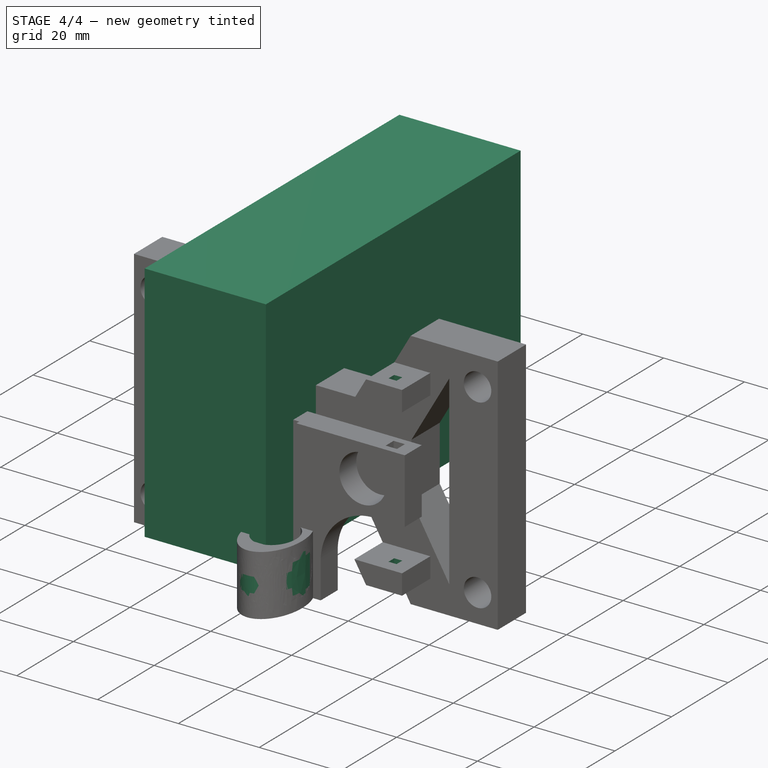
[diagram: stage 4 of 4 — iso view after this stage's code; geometry added in this stage tinted green]
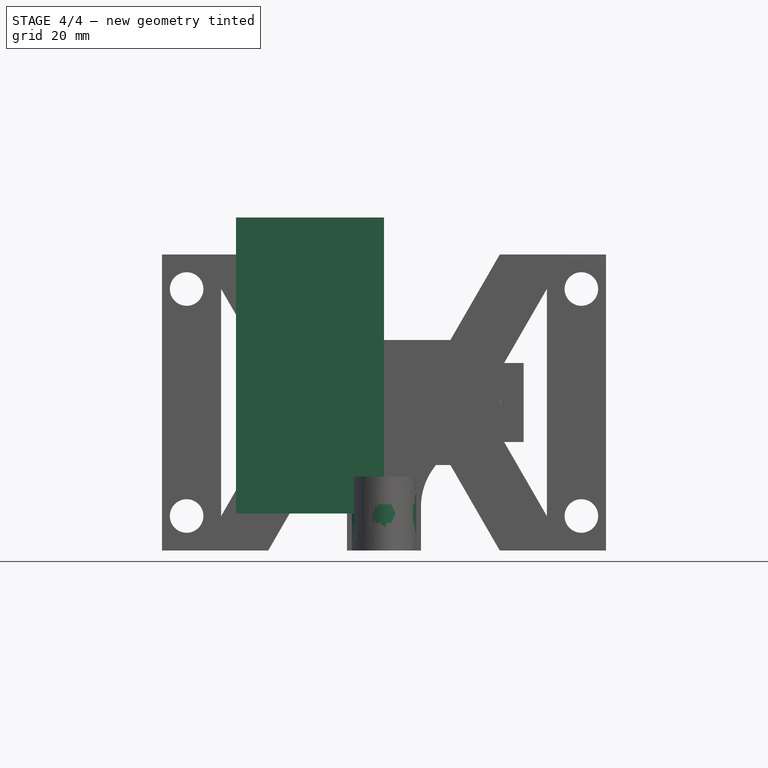
[diagram: stage 4 of 4 — front view after this stage's code; geometry added in this stage tinted green]
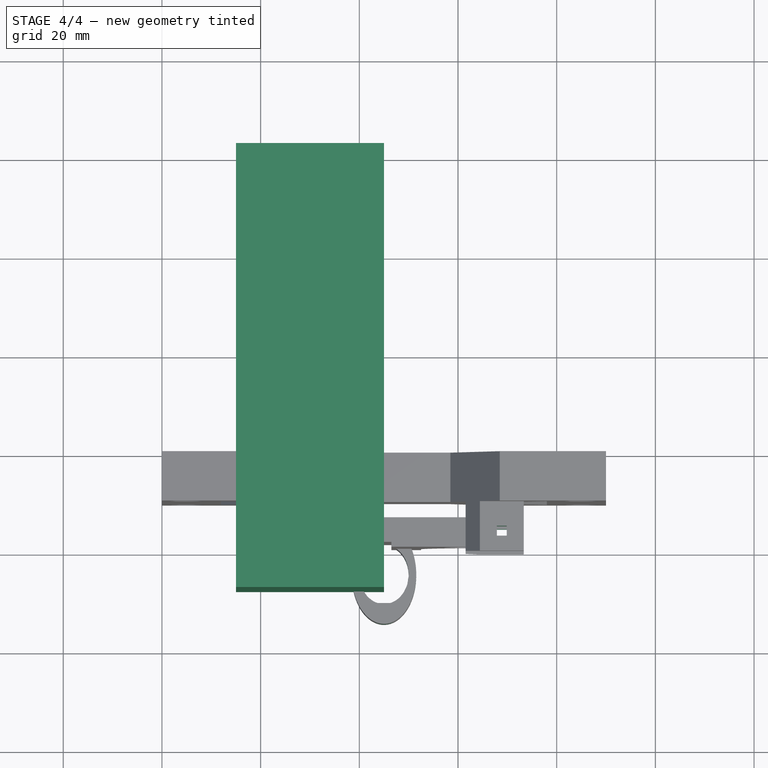
[diagram: stage 4 of 4 — top view after this stage's code; geometry added in this stage tinted green]
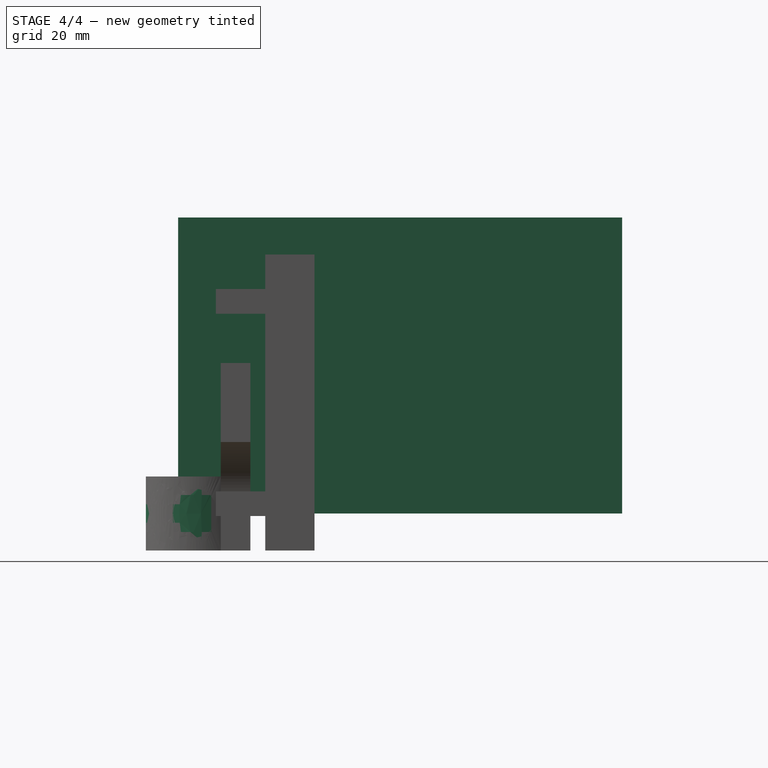
[diagram: stage 4 of 4 — right view after this stage's code; geometry added in this stage tinted green]
FEATURE [Sketcher::SketchObject] Sketch005
  ExternalGeometry = -> [Pad002]
  MapMode = 5
  Placement = pos=(0,6.16e-14,53) rot=(0,0,1;3.14159rad)
  Support = -> [Pad002]
  sketch-geometry (12):
    g0: LineSegment StartX=-20.128 StartY=15 StartZ=0 EndX=-22.128 EndY=15 EndZ=0
    g1: LineSegment StartX=-22.128 StartY=15 StartZ=0 EndX=-22.128 EndY=17 EndZ=0
    g2: LineSegment StartX=-22.128 StartY=17 StartZ=0 EndX=-20.128 EndY=17 EndZ=0
    g3: LineSegment StartX=-20.128 StartY=17 StartZ=0 EndX=-20.128 EndY=15 EndZ=0
    g4: LineSegment StartX=-67.872 StartY=15 StartZ=0 EndX=-69.872 EndY=15 EndZ=0
    g5: LineSegment StartX=-69.872 StartY=15 StartZ=0 EndX=-69.872 EndY=17 EndZ=0
    g6: LineSegment StartX=-69.872 StartY=17 StartZ=0 EndX=-67.872 EndY=17 EndZ=0
    g7: LineSegment StartX=-67.872 StartY=17 StartZ=0 EndX=-67.872 EndY=15 EndZ=0
    g8: GeomPoint X=-21.128 Y=16 Z=0
    g9: GeomPoint X=-68.872 Y=16 Z=0
    g10: LineSegment [constr] StartX=-68.872 StartY=10.9184 StartZ=0 EndX=-68.872 EndY=21.8433 EndZ=0
    g11: LineSegment [constr] StartX=-21.128 StartY=12.6409 StartZ=0 EndX=-21.128 EndY=22.2224 EndZ=0
  constraints (28):
    c: Coincident(g0,g1)
    c: Coincident(g1,g2)
    c: Coincident(g2,g3)
    c: Coincident(g3,g0)
    c: Horizontal(g0)
    c: Horizontal(g2)
    c: Vertical(g1)
    c: Vertical(g3)
    c: Coincident(g4,g5)
    c: Coincident(g5,g6)
    c: Coincident(g6,g7)
    c: Coincident(g7,g4)
    c: Horizontal(g4)
    c: Horizontal(g6)
    c: Vertical(g5)
    c: Vertical(g7)
    c: Equal(g0,g1)
    c: Equal(g1,g4)
    c: Equal(g4,g5)
    c: DistanceX(g0,g0) = 2
    c: Symmetric(g0,g1,g8)
    c: Symmetric(g-5,g-6,g10)
    c: Symmetric(g4,g5,g9)
    c: PointOnObject(g9,g10)
    c: DistanceY(g5,g-6) = 3
    c: Symmetric(g-3,g-4,g11)
    c: PointOnObject(g8,g11)
    c: DistanceY(g2,g-3) = 3
FEATURE [PartDesign::Pocket] Pocket
  BaseFeature = -> Pad002
  Length = 19
  Length2 = 100
  Placement = pos=(0,0,0) rot=(1,0,0;1.5708rad)
  Profile = -> Sketch005
  Type = 1
FEATURE [Sketcher::SketchObject] Sketch
  MapMode = 45
  Placement = pos=(45,-27.6603,7.5) rot=(0,0,1;1.5708rad)
  Support = -> [Pocket003]
  sketch-geometry (4):
    g0: LineSegment StartX=0 StartY=30 StartZ=0 EndX=90 EndY=30 EndZ=0
    g1: LineSegment StartX=90 StartY=30 StartZ=0 EndX=90 EndY=0 EndZ=0
    g2: LineSegment StartX=90 StartY=0 StartZ=0 EndX=0 EndY=0 EndZ=0
    g3: LineSegment StartX=0 StartY=0 StartZ=0 EndX=0 EndY=30 EndZ=0
  constraints (11):
    c: Coincident(g0,g1)
    c: Coincident(g1,g2)
    c: Coincident(g2,g3)
    c: Coincident(g3,g0)
    c: Horizontal(g0)
    c: Horizontal(g2)
    c: Vertical(g1)
    c: Vertical(g3)
    c: Coincident(g2,g-1)
    c: DistanceX(g0,g0) = 90
    c: DistanceY(g1,g1) = 30
FEATURE [PartDesign::Pad] Pad
  Length = 60
  Length2 = 100
  Placement = pos=(0,-13,7e-15) rot=(1,0,0;1.5708rad)
  Profile = -> Sketch
  Type = 0
FEATURE [PartDesign::Pocket] Pocket001
  BaseFeature = -> Pad
  Length = 30
  Length2 = 100
  Placement = pos=(0,-13,7e-15) rot=(1,0,0;1.5708rad)
  Profile = -> Sketch002
  Type = 0
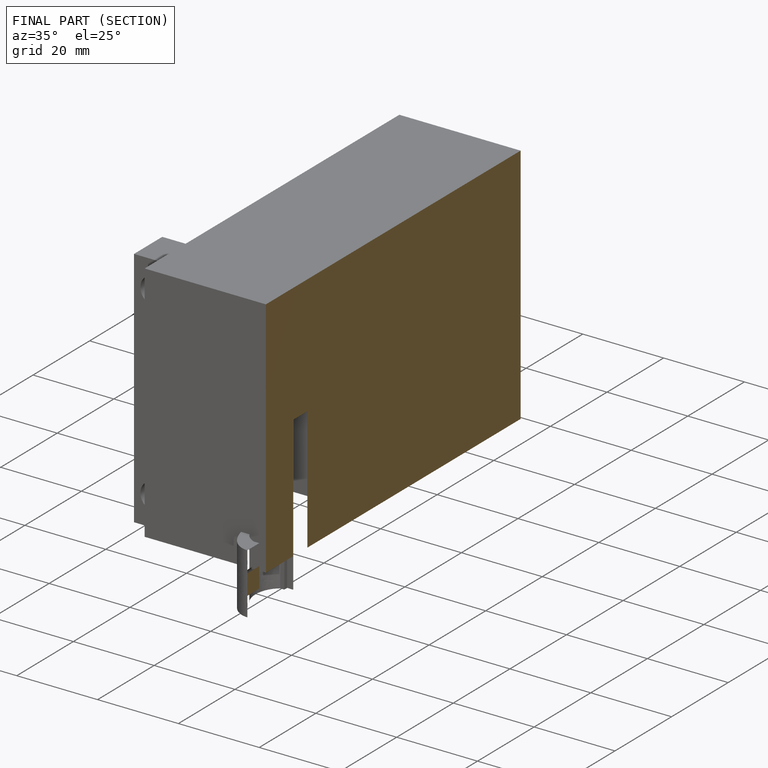
[diagram: finished part — half-section view (interior)]
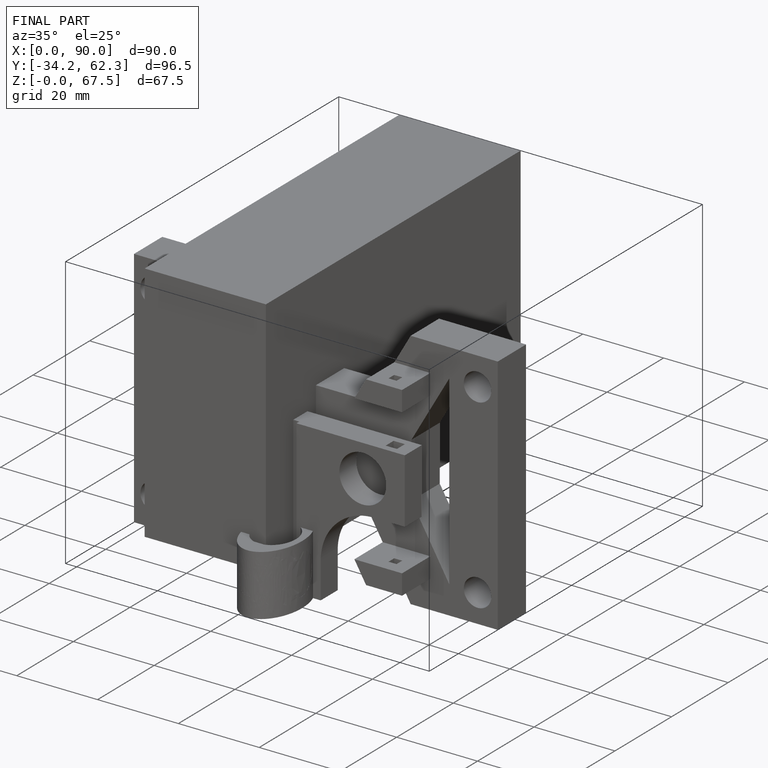
[diagram: finished part — iso view with bounding-box wireframe]
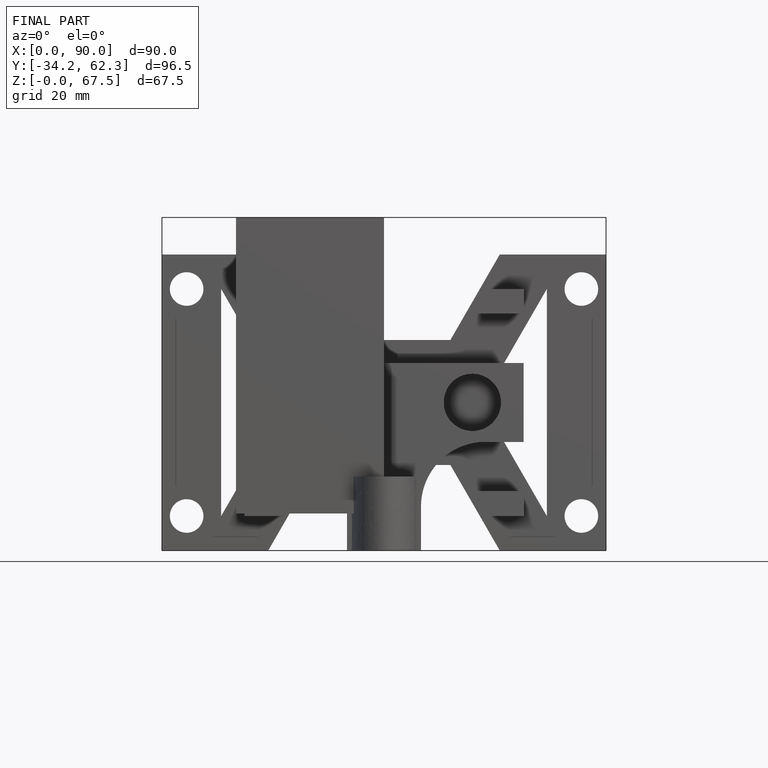
[diagram: finished part — front view with bounding-box wireframe]
